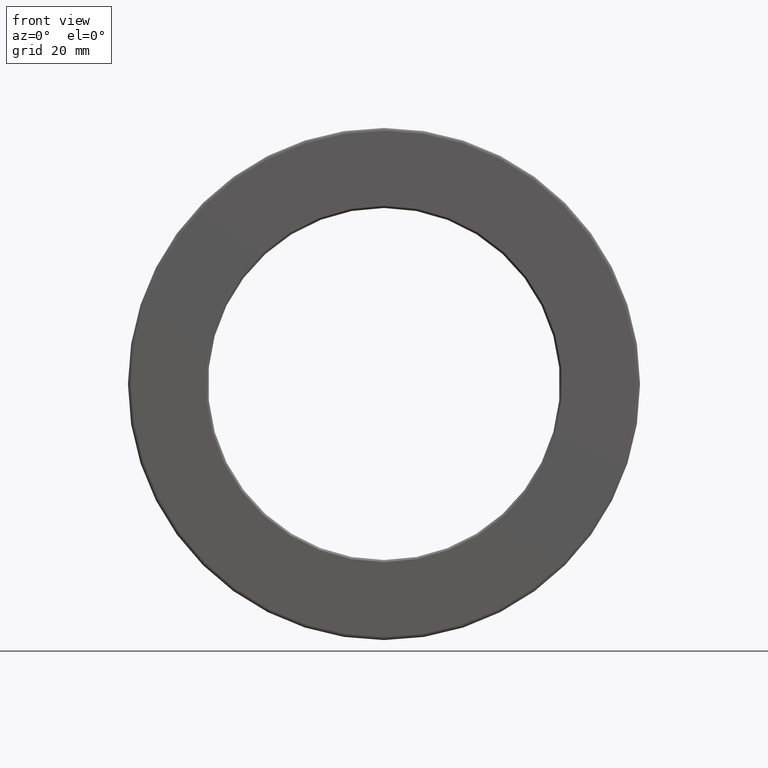
[diagram: clean part render]
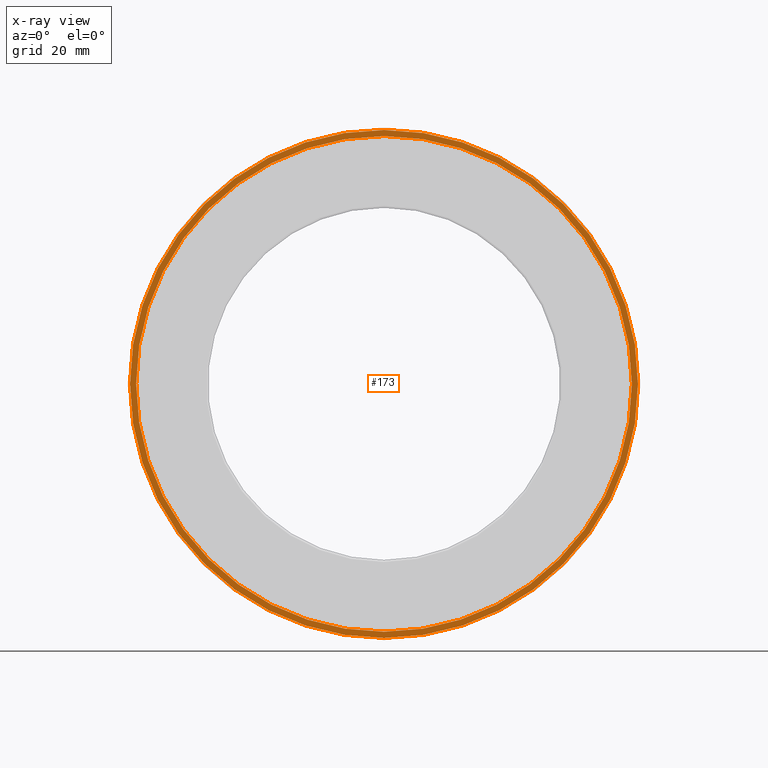
[diagram: x-ray — body ghosted, one internal face saturated and labeled with its STEP entity id]
A machine part, front view, then the same camera in x-ray: the body is ghosted and one INTERNAL B-rep face — a face not visible from any outside direction — is saturated and labeled: STEP entity #173.
In plain terms, the highlighted planar face has unit normal (-0, 1, 0).
Its self-contained STEP definition (entity closure, byte-faithful):
#42 = CARTESIAN_POINT ( 'NONE',  ( 0.0000000000000000000, 0.9649999999999996400, 2.480000000000000400 ) ) ;
#49 = FACE_BOUND ( 'NONE', #294, .T. ) ;
#107 = VERTEX_POINT ( 'NONE', #119 ) ;
#119 = CARTESIAN_POINT ( 'NONE',  ( 0.0000000000000000000, 0.9649999999999996400, 2.419999999999999900 ) ) ;
#134 = ORIENTED_EDGE ( 'NONE', *, *, #271, .T. ) ;
#147 = PLANE ( 'NONE',  #320 ) ;
#173 = ADVANCED_FACE ( 'NONE', ( #364, #49 ), #147, .F. ) ;
#180 = AXIS2_PLACEMENT_3D ( 'NONE', #332, #193, #369 ) ;
#193 = DIRECTION ( 'NONE',  ( -0.0000000000000000000, 1.000000000000000000, -0.0000000000000000000 ) ) ;
#230 = DIRECTION ( 'NONE',  ( -0.0000000000000000000, 1.000000000000000000, 0.0000000000000000000 ) ) ;
#248 = DIRECTION ( 'NONE',  ( 0.0000000000000000000, 0.0000000000000000000, 1.000000000000000000 ) ) ;
#271 = EDGE_CURVE ( 'NONE', #107, #107, #404, .T. ) ;
#279 = CARTESIAN_POINT ( 'NONE',  ( 0.0000000000000000000, 0.9649999999999996400, 0.0000000000000000000 ) ) ;
#294 = EDGE_LOOP ( 'NONE', ( #134 ) ) ;
#296 = DIRECTION ( 'NONE',  ( -0.0000000000000000000, 1.000000000000000000, -0.0000000000000000000 ) ) ;
#320 = AXIS2_PLACEMENT_3D ( 'NONE', #279, #230, #476 ) ;
#332 = CARTESIAN_POINT ( 'NONE',  ( 0.0000000000000000000, 0.9649999999999996400, 0.0000000000000000000 ) ) ;
#364 = FACE_OUTER_BOUND ( 'NONE', #484, .T. ) ;
#369 = DIRECTION ( 'NONE',  ( 0.0000000000000000000, 0.0000000000000000000, 1.000000000000000000 ) ) ;
#380 = ORIENTED_EDGE ( 'NONE', *, *, #503, .F. ) ;
#404 = CIRCLE ( 'NONE', #180, 2.419999999999999900 ) ;
#476 = DIRECTION ( 'NONE',  ( 0.0000000000000000000, 0.0000000000000000000, 1.000000000000000000 ) ) ;
#484 = EDGE_LOOP ( 'NONE', ( #380 ) ) ;
#494 = CARTESIAN_POINT ( 'NONE',  ( 0.0000000000000000000, 0.9649999999999996400, 0.0000000000000000000 ) ) ;
#503 = EDGE_CURVE ( 'NONE', #524, #524, #555, .T. ) ;
#522 = AXIS2_PLACEMENT_3D ( 'NONE', #494, #296, #248 ) ;
#524 = VERTEX_POINT ( 'NONE', #42 ) ;
#555 = CIRCLE ( 'NONE', #522, 2.480000000000000400 ) ;